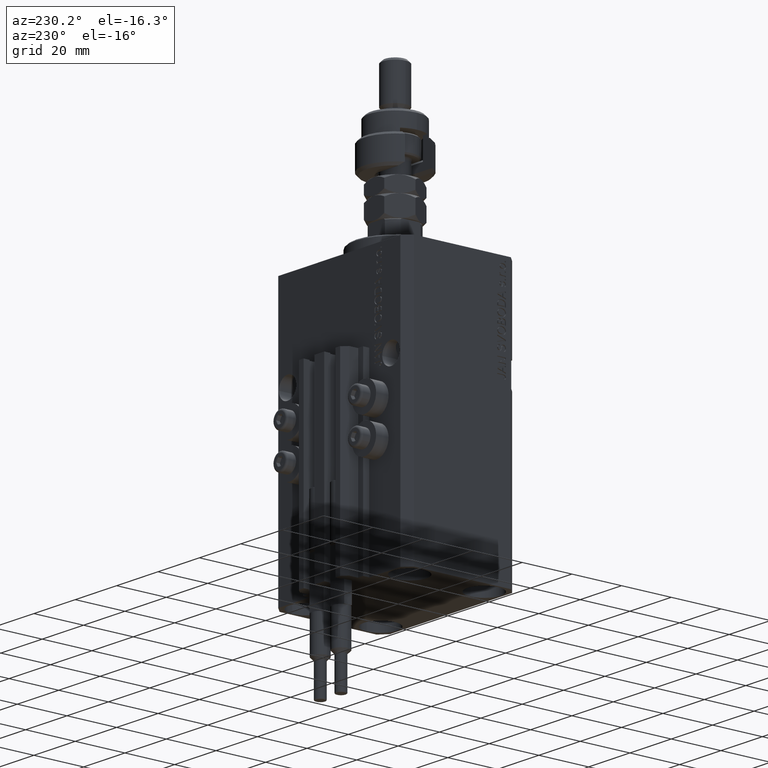
[diagram: clean part render]
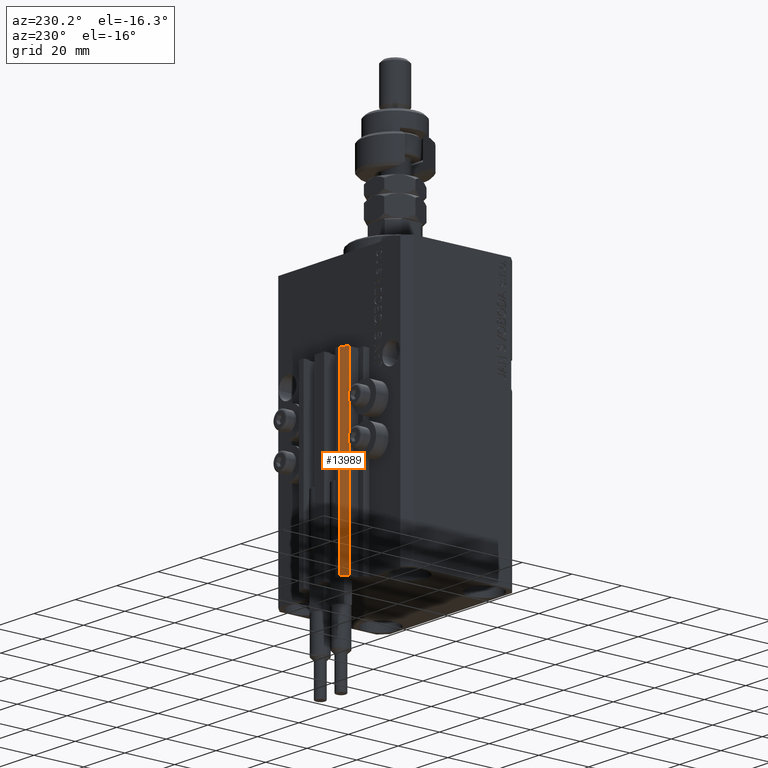
[diagram: same view with one face highlighted and labeled with its STEP entity id]
A machine part, auxiliary view. The second image highlights one B-rep face of the part: STEP entity #13989.
In plain terms, the highlighted planar face has unit normal (-0.7071, 0.7071, 0).
Its self-contained STEP definition (entity closure, byte-faithful):
#1406 = DIRECTION ( 'NONE',  ( 0.000000000000000000, 0.000000000000000000, 1.000000000000000000 ) ) ;
#3736 = VERTEX_POINT ( 'NONE', #48082 ) ;
#4760 = VERTEX_POINT ( 'NONE', #5099 ) ;
#5099 = CARTESIAN_POINT ( 'NONE',  ( -12.00000000000000000, 28.49999999999948841, -33.00000000000000000 ) ) ;
#5934 = VERTEX_POINT ( 'NONE', #13718 ) ;
#6087 = AXIS2_PLACEMENT_3D ( 'NONE', #29610, #24979, #29850 ) ;
#9630 = LINE ( 'NONE', #41257, #15475 ) ;
#13498 = ORIENTED_EDGE ( 'NONE', *, *, #18312, .F. ) ;
#13718 = CARTESIAN_POINT ( 'NONE',  ( -10.00000000000000000, 30.49999999999948841, -33.00000000000000000 ) ) ;
#13989 = ADVANCED_FACE ( 'NONE', ( #17006 ), #33457, .T. ) ;
#15475 = VECTOR ( 'NONE', #1406, 1000.000000000000000 ) ;
#17006 = FACE_OUTER_BOUND ( 'NONE', #34445, .T. ) ;
#18312 = EDGE_CURVE ( 'NONE', #3736, #5934, #18319, .T. ) ;
#18319 = LINE ( 'NONE', #41701, #47272 ) ;
#18569 = VERTEX_POINT ( 'NONE', #30271 ) ;
#18771 = ORIENTED_EDGE ( 'NONE', *, *, #45703, .T. ) ;
#20409 = CARTESIAN_POINT ( 'NONE',  ( -10.00000000000000000, 30.49999999999948841, -33.00000000000000000 ) ) ;
#23380 = DIRECTION ( 'NONE',  ( -0.7071067811865472397, -0.7071067811865479058, 0.000000000000000000 ) ) ;
#24017 = EDGE_CURVE ( 'NONE', #5934, #4760, #47908, .T. ) ;
#24979 = DIRECTION ( 'NONE',  ( -0.7071067811865479058, 0.7071067811865472397, 0.000000000000000000 ) ) ;
#25772 = DIRECTION ( 'NONE',  ( 0.000000000000000000, 0.000000000000000000, 1.000000000000000000 ) ) ;
#26790 = ORIENTED_EDGE ( 'NONE', *, *, #33401, .T. ) ;
#26899 = ORIENTED_EDGE ( 'NONE', *, *, #24017, .F. ) ;
#27248 = LINE ( 'NONE', #42152, #31332 ) ;
#29610 = CARTESIAN_POINT ( 'NONE',  ( -10.00000000000000000, 30.49999999999948841, -107.0000000000000000 ) ) ;
#29850 = DIRECTION ( 'NONE',  ( -0.7071067811865472397, -0.7071067811865479058, 0.000000000000000000 ) ) ;
#30271 = CARTESIAN_POINT ( 'NONE',  ( -12.00000000000000000, 28.49999999999948841, -107.0000000000000000 ) ) ;
#31332 = VECTOR ( 'NONE', #23380, 999.9999999999998863 ) ;
#33401 = EDGE_CURVE ( 'NONE', #3736, #18569, #27248, .T. ) ;
#33457 = PLANE ( 'NONE',  #6087 ) ;
#34445 = EDGE_LOOP ( 'NONE', ( #26899, #13498, #26790, #18771 ) ) ;
#35588 = DIRECTION ( 'NONE',  ( -0.7071067811865472397, -0.7071067811865479058, 0.000000000000000000 ) ) ;
#36855 = VECTOR ( 'NONE', #35588, 999.9999999999998863 ) ;
#41257 = CARTESIAN_POINT ( 'NONE',  ( -12.00000000000000000, 28.49999999999948841, -107.0000000000000000 ) ) ;
#41701 = CARTESIAN_POINT ( 'NONE',  ( -10.00000000000000000, 30.49999999999948841, -107.0000000000000000 ) ) ;
#42152 = CARTESIAN_POINT ( 'NONE',  ( -10.00000000000000000, 30.49999999999948841, -107.0000000000000000 ) ) ;
#45703 = EDGE_CURVE ( 'NONE', #18569, #4760, #9630, .T. ) ;
#47272 = VECTOR ( 'NONE', #25772, 1000.000000000000000 ) ;
#47908 = LINE ( 'NONE', #20409, #36855 ) ;
#48082 = CARTESIAN_POINT ( 'NONE',  ( -10.00000000000000000, 30.49999999999948841, -107.0000000000000000 ) ) ;